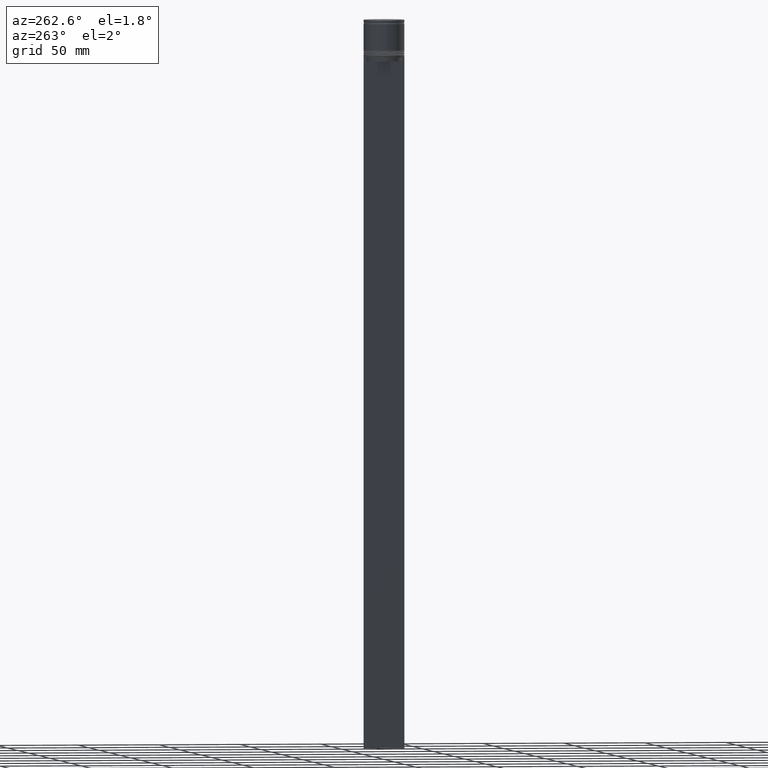
[diagram: clean part render]
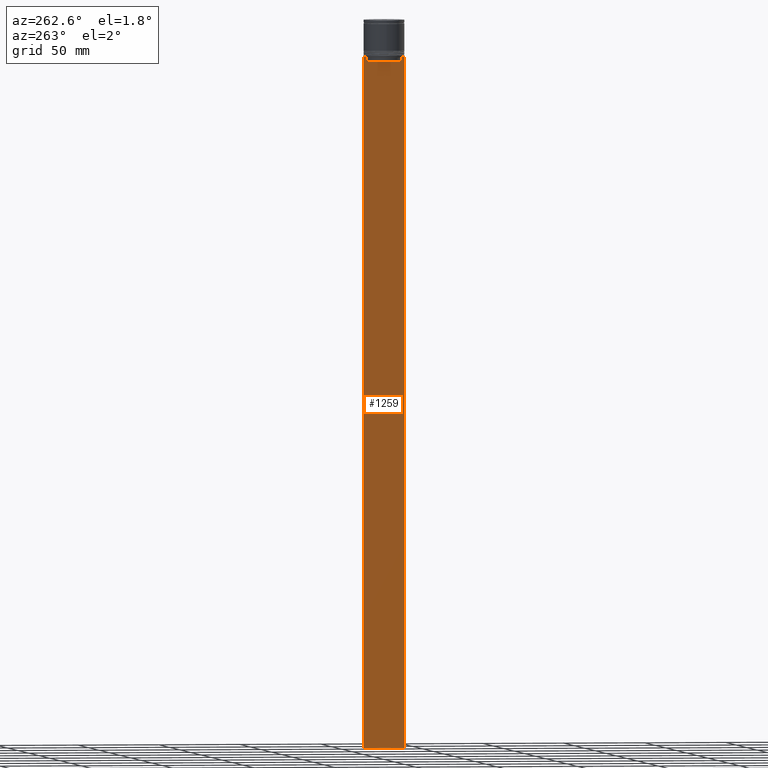
[diagram: same view with one face highlighted and labeled with its STEP entity id]
A machine part, auxiliary view. The second image highlights one B-rep face of the part: STEP entity #1259.
In plain terms, the highlighted planar face has unit normal (-1, 0, 0).
Its self-contained STEP definition (entity closure, byte-faithful):
#11 = EDGE_CURVE ( 'NONE', #1437, #1699, #79, .T. ) ;
#59 = ORIENTED_EDGE ( 'NONE', *, *, #258, .F. ) ;
#66 = B_SPLINE_CURVE_WITH_KNOTS ( 'NONE', 3,
 ( #1902, #103, #93, #2050 ),
 .UNSPECIFIED., .F., .F.,
 ( 4, 4 ),
 ( 0.01935560801904635808, 0.02006307108468587813 ),
 .UNSPECIFIED. ) ;
#79 = LINE ( 'NONE', #371, #124 ) ;
#82 = VERTEX_POINT ( 'NONE', #1209 ) ;
#93 = CARTESIAN_POINT ( 'NONE',  ( -0.5000000000000000000, 11.05536450345590715, -22.83333719074559554 ) ) ;
#103 = CARTESIAN_POINT ( 'NONE',  ( -0.5000000000000000000, 11.22219891375843126, -22.66667035472756808 ) ) ;
#104 = EDGE_CURVE ( 'NONE', #705, #297, #1018, .T. ) ;
#106 = CARTESIAN_POINT ( 'NONE',  ( -0.5000000000000000000, -12.49999999999999289, 2.519992006393609874 ) ) ;
#124 = VECTOR ( 'NONE', #381, 1000.000000000000000 ) ;
#149 = B_SPLINE_CURVE_WITH_KNOTS ( 'NONE', 3,
 ( #348, #1677, #360, #517 ),
 .UNSPECIFIED., .F., .F.,
 ( 4, 4 ),
 ( 0.05041323384703231408, 0.05112713601261610619 ),
 .UNSPECIFIED. ) ;
#165 = DIRECTION ( 'NONE',  ( 0.000000000000000000, -1.000000000000000000, 0.000000000000000000 ) ) ;
#192 = EDGE_LOOP ( 'NONE', ( #950, #1404, #1959, #361, #864, #1158, #1965, #856, #59, #1348, #433, #790 ) ) ;
#199 = VERTEX_POINT ( 'NONE', #461 ) ;
#251 = VECTOR ( 'NONE', #1276, 1000.000000000000000 ) ;
#258 = EDGE_CURVE ( 'NONE', #1515, #1531, #149, .T. ) ;
#297 = VERTEX_POINT ( 'NONE', #1823 ) ;
#311 = EDGE_CURVE ( 'NONE', #297, #391, #66, .T. ) ;
#348 = CARTESIAN_POINT ( 'NONE',  ( -0.5000000000000000000, -10.88852607105297032, -22.99999999999999645 ) ) ;
#360 = CARTESIAN_POINT ( 'NONE',  ( -0.5000000000000000000, -11.22219891450653151, -22.66667035398018726 ) ) ;
#361 = ORIENTED_EDGE ( 'NONE', *, *, #771, .T. ) ;
#371 = CARTESIAN_POINT ( 'NONE',  ( -0.5000000000000000000, -12.49999999999999289, -446.5000000000000000 ) ) ;
#381 = DIRECTION ( 'NONE',  ( 0.000000000000000000, 1.000000000000000000, 0.000000000000000000 ) ) ;
#385 = CARTESIAN_POINT ( 'NONE',  ( -0.5000000000000000000, -12.49999999999999289, -446.5000000000000000 ) ) ;
#391 = VERTEX_POINT ( 'NONE', #1283 ) ;
#394 = CARTESIAN_POINT ( 'NONE',  ( -0.5000000000000000000, -10.88852607105297032, -22.99999999999999645 ) ) ;
#433 = ORIENTED_EDGE ( 'NONE', *, *, #1789, .F. ) ;
#461 = CARTESIAN_POINT ( 'NONE',  ( -0.5000000000000000000, 10.88852607105296855, -25.50000000000000000 ) ) ;
#470 = PLANE ( 'NONE',  #1363 ) ;
#517 = CARTESIAN_POINT ( 'NONE',  ( -0.5000000000000000000, -11.38902980942626897, -22.50000000000000000 ) ) ;
#522 = VECTOR ( 'NONE', #613, 1000.000000000000000 ) ;
#590 = VECTOR ( 'NONE', #847, 1000.000000000000000 ) ;
#613 = DIRECTION ( 'NONE',  ( -0.000000000000000000, -0.000000000000000000, 1.000000000000000000 ) ) ;
#646 = DIRECTION ( 'NONE',  ( 0.000000000000000000, 0.000000000000000000, -1.000000000000000000 ) ) ;
#705 = VERTEX_POINT ( 'NONE', #1057 ) ;
#729 = CARTESIAN_POINT ( 'NONE',  ( -0.5000000000000000000, -12.49999999999999289, 2.519992006393609874 ) ) ;
#748 = CARTESIAN_POINT ( 'NONE',  ( -0.5000000000000000000, 10.90000000000000924, -25.50000000000000000 ) ) ;
#757 = EDGE_CURVE ( 'NONE', #1316, #1515, #1258, .T. ) ;
#760 = DIRECTION ( 'NONE',  ( 0.000000000000000000, 0.000000000000000000, 1.000000000000000000 ) ) ;
#764 = CARTESIAN_POINT ( 'NONE',  ( -0.5000000000000000000, 12.50000000000000711, -22.50000000000000000 ) ) ;
#770 = FACE_OUTER_BOUND ( 'NONE', #192, .T. ) ;
#771 = EDGE_CURVE ( 'NONE', #844, #1699, #1433, .T. ) ;
#790 = ORIENTED_EDGE ( 'NONE', *, *, #990, .F. ) ;
#844 = VERTEX_POINT ( 'NONE', #764 ) ;
#847 = DIRECTION ( 'NONE',  ( 0.000000000000000000, -1.000000000000000000, 0.000000000000000000 ) ) ;
#856 = ORIENTED_EDGE ( 'NONE', *, *, #1431, .F. ) ;
#864 = ORIENTED_EDGE ( 'NONE', *, *, #11, .F. ) ;
#891 = VECTOR ( 'NONE', #646, 1000.000000000000000 ) ;
#950 = ORIENTED_EDGE ( 'NONE', *, *, #311, .F. ) ;
#961 = CARTESIAN_POINT ( 'NONE',  ( -0.5000000000000000000, 12.50000000000000711, -446.5000000000000000 ) ) ;
#990 = EDGE_CURVE ( 'NONE', #391, #199, #1160, .T. ) ;
#993 = DIRECTION ( 'NONE',  ( 0.000000000000000000, 0.000000000000000000, -1.000000000000000000 ) ) ;
#1018 = LINE ( 'NONE', #1659, #590 ) ;
#1024 = LINE ( 'NONE', #729, #1704 ) ;
#1057 = CARTESIAN_POINT ( 'NONE',  ( -0.5000000000000000000, 12.38991525394746596, -22.50000000000000000 ) ) ;
#1068 = CARTESIAN_POINT ( 'NONE',  ( -0.5000000000000000000, -12.49999999999999289, -22.50000000000000000 ) ) ;
#1105 = DIRECTION ( 'NONE',  ( -1.000000000000000000, 0.000000000000000000, 0.000000000000000000 ) ) ;
#1110 = VECTOR ( 'NONE', #165, 1000.000000000000000 ) ;
#1113 = EDGE_CURVE ( 'NONE', #2071, #1437, #1024, .T. ) ;
#1132 = VECTOR ( 'NONE', #993, 1000.000000000000000 ) ;
#1158 = ORIENTED_EDGE ( 'NONE', *, *, #1113, .F. ) ;
#1160 = LINE ( 'NONE', #1969, #1132 ) ;
#1168 = VECTOR ( 'NONE', #1260, 1000.000000000000000 ) ;
#1185 = LINE ( 'NONE', #1842, #1439 ) ;
#1209 = CARTESIAN_POINT ( 'NONE',  ( -0.5000000000000000000, -12.38991525394746596, -22.50000000000000000 ) ) ;
#1258 = LINE ( 'NONE', #2074, #522 ) ;
#1259 = ADVANCED_FACE ( 'NONE', ( #770 ), #470, .T. ) ;
#1260 = DIRECTION ( 'NONE',  ( 0.000000000000000000, -1.000000000000000000, 0.000000000000000000 ) ) ;
#1276 = DIRECTION ( 'NONE',  ( 0.000000000000000000, -1.000000000000000000, 0.000000000000000000 ) ) ;
#1283 = CARTESIAN_POINT ( 'NONE',  ( -0.5000000000000000000, 10.88852607105297032, -22.99999999999999645 ) ) ;
#1309 = EDGE_CURVE ( 'NONE', #82, #2071, #1560, .T. ) ;
#1316 = VERTEX_POINT ( 'NONE', #1926 ) ;
#1348 = ORIENTED_EDGE ( 'NONE', *, *, #757, .F. ) ;
#1363 = AXIS2_PLACEMENT_3D ( 'NONE', #106, #1105, #760 ) ;
#1404 = ORIENTED_EDGE ( 'NONE', *, *, #104, .F. ) ;
#1431 = EDGE_CURVE ( 'NONE', #1531, #82, #1185, .T. ) ;
#1433 = LINE ( 'NONE', #2044, #891 ) ;
#1437 = VERTEX_POINT ( 'NONE', #385 ) ;
#1439 = VECTOR ( 'NONE', #1478, 1000.000000000000000 ) ;
#1478 = DIRECTION ( 'NONE',  ( 0.000000000000000000, -1.000000000000000000, 0.000000000000000000 ) ) ;
#1515 = VERTEX_POINT ( 'NONE', #394 ) ;
#1526 = CARTESIAN_POINT ( 'NONE',  ( -0.5000000000000000000, -11.38902980942626897, -22.50000000000000000 ) ) ;
#1531 = VERTEX_POINT ( 'NONE', #1526 ) ;
#1560 = LINE ( 'NONE', #1068, #251 ) ;
#1618 = LINE ( 'NONE', #1624, #1168 ) ;
#1624 = CARTESIAN_POINT ( 'NONE',  ( -0.5000000000000000000, -12.49999999999999289, -22.50000000000000000 ) ) ;
#1659 = CARTESIAN_POINT ( 'NONE',  ( -0.5000000000000000000, -12.49999999999999289, -22.50000000000000000 ) ) ;
#1661 = CARTESIAN_POINT ( 'NONE',  ( -0.5000000000000000000, -12.49999999999999289, -22.50000000000000000 ) ) ;
#1677 = CARTESIAN_POINT ( 'NONE',  ( -0.5000000000000000000, -11.05536450423839412, -22.83333718996392747 ) ) ;
#1699 = VERTEX_POINT ( 'NONE', #961 ) ;
#1700 = DIRECTION ( 'NONE',  ( 0.000000000000000000, 0.000000000000000000, -1.000000000000000000 ) ) ;
#1704 = VECTOR ( 'NONE', #1700, 1000.000000000000000 ) ;
#1774 = LINE ( 'NONE', #748, #1110 ) ;
#1789 = EDGE_CURVE ( 'NONE', #199, #1316, #1774, .T. ) ;
#1823 = CARTESIAN_POINT ( 'NONE',  ( -0.5000000000000000000, 11.38902980942626897, -22.50000000000000000 ) ) ;
#1842 = CARTESIAN_POINT ( 'NONE',  ( -0.5000000000000000000, -12.49999999999999289, -22.50000000000000000 ) ) ;
#1902 = CARTESIAN_POINT ( 'NONE',  ( -0.5000000000000000000, 11.38902980942626897, -22.50000000000000000 ) ) ;
#1926 = CARTESIAN_POINT ( 'NONE',  ( -0.5000000000000000000, -10.88852607105296855, -25.50000000000000000 ) ) ;
#1935 = EDGE_CURVE ( 'NONE', #844, #705, #1618, .T. ) ;
#1959 = ORIENTED_EDGE ( 'NONE', *, *, #1935, .F. ) ;
#1965 = ORIENTED_EDGE ( 'NONE', *, *, #1309, .F. ) ;
#1969 = CARTESIAN_POINT ( 'NONE',  ( -0.5000000000000000000, 10.88852607105297032, 0.000000000000000000 ) ) ;
#2044 = CARTESIAN_POINT ( 'NONE',  ( -0.5000000000000000000, 12.50000000000000711, 2.519992006393609874 ) ) ;
#2050 = CARTESIAN_POINT ( 'NONE',  ( -0.5000000000000000000, 10.88852607105297032, -22.99999999999999645 ) ) ;
#2071 = VERTEX_POINT ( 'NONE', #1661 ) ;
#2074 = CARTESIAN_POINT ( 'NONE',  ( -0.5000000000000000000, -10.88852607105297032, 0.000000000000000000 ) ) ;